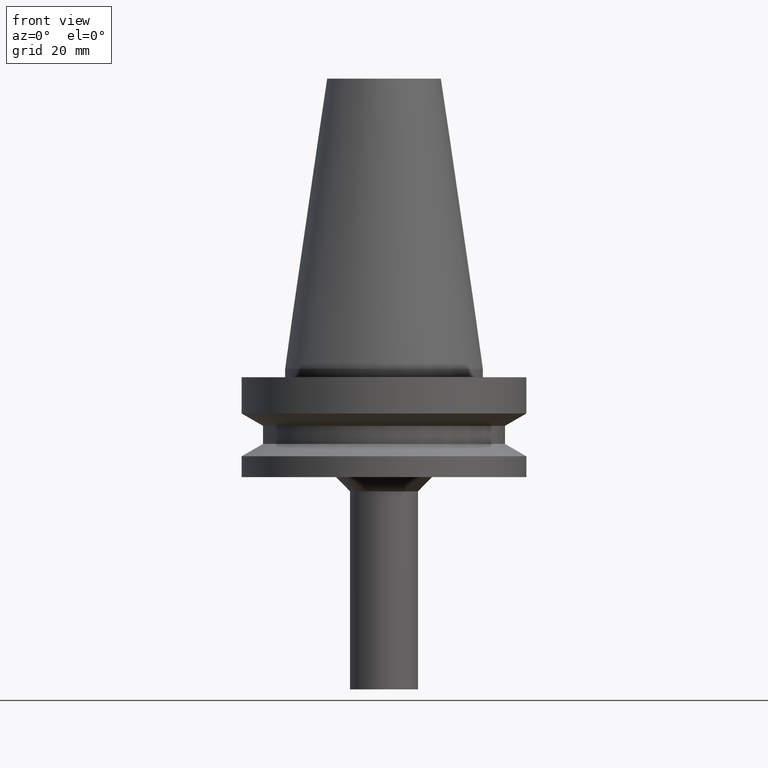
[diagram: clean part render]
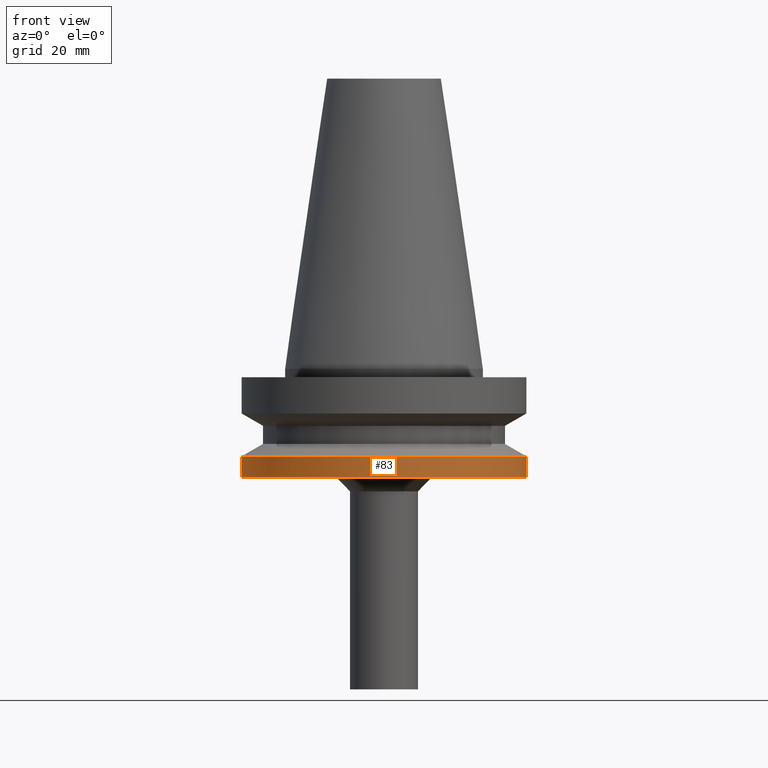
[diagram: same view with one face highlighted and labeled with its STEP entity id]
A machine part, front view. The second image highlights one B-rep face of the part: STEP entity #83.
In plain terms, the highlighted cylindrical surface (bore or boss wall) has radius 50 mm, axis along (-0, -0, 1).
Its self-contained STEP definition (entity closure, byte-faithful):
#83=ADVANCED_FACE('',(#112,#113),#114,.T.);
#112=FACE_BOUND('',#149,.T.);
#113=FACE_BOUND('',#150,.T.);
#114=CYLINDRICAL_SURFACE('',#151,50.0);
#149=EDGE_LOOP('',(#202));
#150=EDGE_LOOP('',(#203));
#151=AXIS2_PLACEMENT_3D('',#204,#205,#206);
#202=ORIENTED_EDGE('',*,*,#234,.F.);
#203=ORIENTED_EDGE('',*,*,#233,.T.);
#204=CARTESIAN_POINT('',(2.10333087753558E-015,4.20666175507116E-015,-34.35));
#205=DIRECTION('',(-6.12323399573677E-017,-1.22464679914672E-016,1.0));
#206=DIRECTION('',(-1.23259516440783E-032,1.0,1.22464679914672E-016));
#233=EDGE_CURVE('',#252,#252,#253,.T.);
#234=EDGE_CURVE('',#254,#254,#255,.T.);
#252=VERTEX_POINT('',#276);
#253=CIRCLE('',#277,50.0);
#254=VERTEX_POINT('',#278);
#255=CIRCLE('',#279,50.0);
#276=CARTESIAN_POINT('',(1.87983283669119E-015,50.0,-30.7));
#277=AXIS2_PLACEMENT_3D('',#307,#308,#309);
#278=CARTESIAN_POINT('',(2.32682891837997E-015,50.0,-38.0));
#279=AXIS2_PLACEMENT_3D('',#310,#311,#312);
#307=CARTESIAN_POINT('',(1.87983283669119E-015,3.75966567338237E-015,-30.7));
#308=DIRECTION('',(6.12323399573677E-017,1.22464679914672E-016,-1.0));
#309=DIRECTION('',(-1.23259516440783E-032,1.0,1.22464679914672E-016));
#310=CARTESIAN_POINT('',(2.32682891837997E-015,4.65365783675994E-015,-38.0));
#311=DIRECTION('',(6.12323399573677E-017,1.22464679914672E-016,-1.0));
#312=DIRECTION('',(-1.23259516440783E-032,1.0,1.22464679914672E-016));